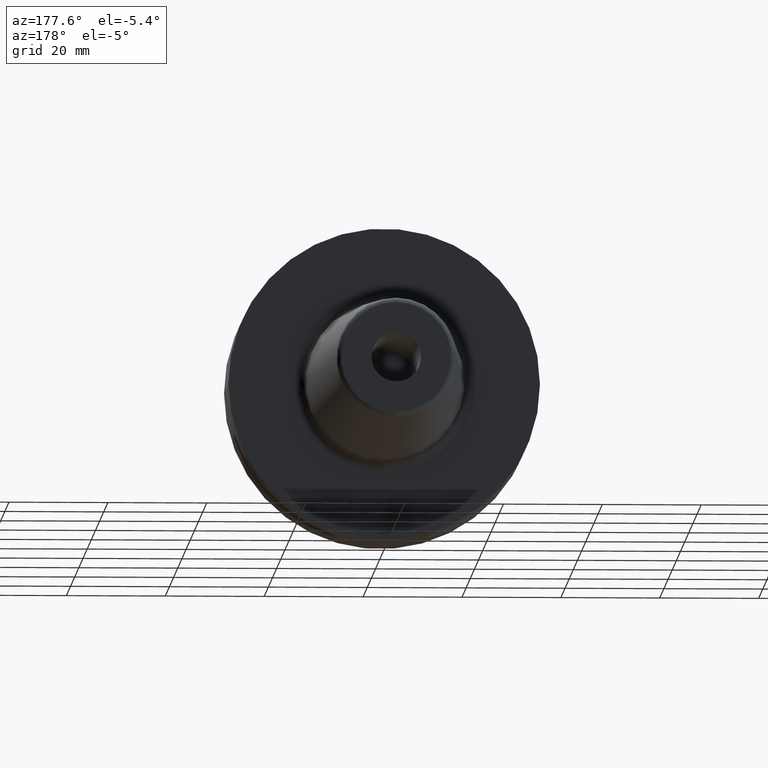
[diagram: clean part render]
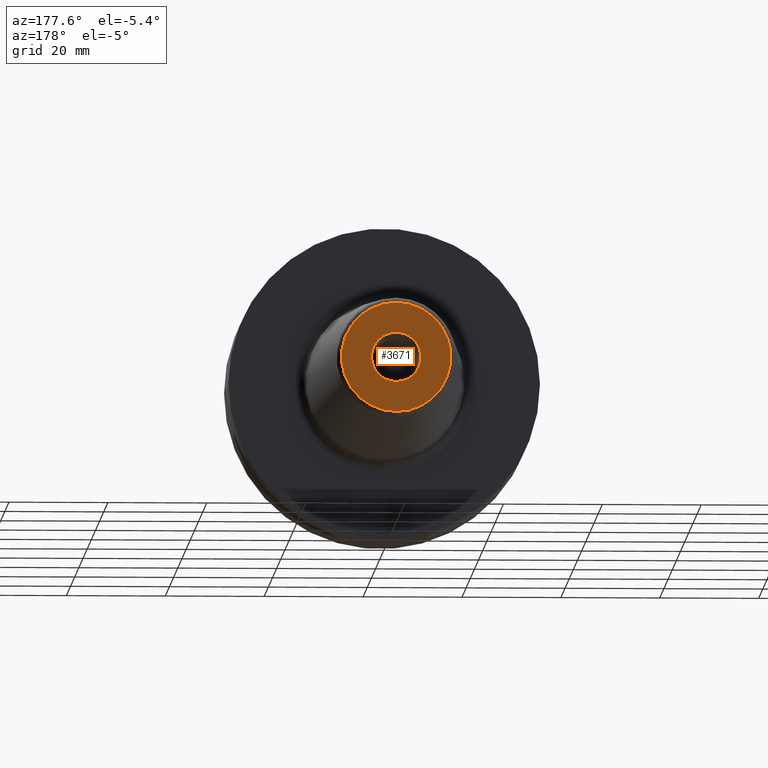
[diagram: same view with one face highlighted and labeled with its STEP entity id]
A machine part, auxiliary view. The second image highlights one B-rep face of the part: STEP entity #3671.
In plain terms, the highlighted planar face has unit normal (0, 1, 0).
Its self-contained STEP definition (entity closure, byte-faithful):
#1665=CARTESIAN_POINT('',(0.E0,8.E1,0.E0));
#1666=DIRECTION('',(0.E0,-1.E0,0.E0));
#1667=DIRECTION('',(0.E0,0.E0,-1.E0));
#1668=AXIS2_PLACEMENT_3D('',#1665,#1666,#1667);
#1670=CARTESIAN_POINT('',(0.E0,8.E1,0.E0));
#1671=DIRECTION('',(0.E0,-1.E0,0.E0));
#1672=DIRECTION('',(0.E0,0.E0,1.E0));
#1673=AXIS2_PLACEMENT_3D('',#1670,#1671,#1672);
#1675=CARTESIAN_POINT('',(0.E0,8.E1,0.E0));
#1676=DIRECTION('',(0.E0,-1.E0,0.E0));
#1677=DIRECTION('',(0.E0,0.E0,-1.E0));
#1678=AXIS2_PLACEMENT_3D('',#1675,#1676,#1677);
#1680=CARTESIAN_POINT('',(0.E0,8.E1,0.E0));
#1681=DIRECTION('',(0.E0,-1.E0,0.E0));
#1682=DIRECTION('',(0.E0,0.E0,1.E0));
#1683=AXIS2_PLACEMENT_3D('',#1680,#1681,#1682);
#2086=CARTESIAN_POINT('',(0.E0,8.E1,-5.E0));
#2087=CARTESIAN_POINT('',(0.E0,8.E1,5.E0));
#2088=VERTEX_POINT('',#2086);
#2089=VERTEX_POINT('',#2087);
#2094=CARTESIAN_POINT('',(0.E0,8.E1,-1.107560950834E1));
#2095=CARTESIAN_POINT('',(0.E0,8.E1,1.107560950834E1));
#2096=VERTEX_POINT('',#2094);
#2097=VERTEX_POINT('',#2095);
#3656=CARTESIAN_POINT('',(0.E0,8.E1,0.E0));
#3657=DIRECTION('',(0.E0,1.E0,0.E0));
#3658=DIRECTION('',(0.E0,0.E0,-1.E0));
#3659=AXIS2_PLACEMENT_3D('',#3656,#3657,#3658);
#3660=PLANE('',#3659);
#3661=ORIENTED_EDGE('',*,*,#3638,.T.);
#3662=ORIENTED_EDGE('',*,*,#3623,.T.);
#3663=EDGE_LOOP('',(#3661,#3662));
#3664=FACE_OUTER_BOUND('',#3663,.F.);
#3666=ORIENTED_EDGE('',*,*,#3665,.F.);
#3668=ORIENTED_EDGE('',*,*,#3667,.F.);
#3669=EDGE_LOOP('',(#3666,#3668));
#3670=FACE_BOUND('',#3669,.F.);
#3671=ADVANCED_FACE('',(#3664,#3670),#3660,.T.);
#1669=CIRCLE('',#1668,5.E0);
#1674=CIRCLE('',#1673,5.E0);
#1679=CIRCLE('',#1678,1.107560950834E1);
#1684=CIRCLE('',#1683,1.107560950834E1);
#3623=EDGE_CURVE('',#2097,#2096,#1684,.T.);
#3638=EDGE_CURVE('',#2096,#2097,#1679,.T.);
#3665=EDGE_CURVE('',#2088,#2089,#1669,.T.);
#3667=EDGE_CURVE('',#2089,#2088,#1674,.T.);